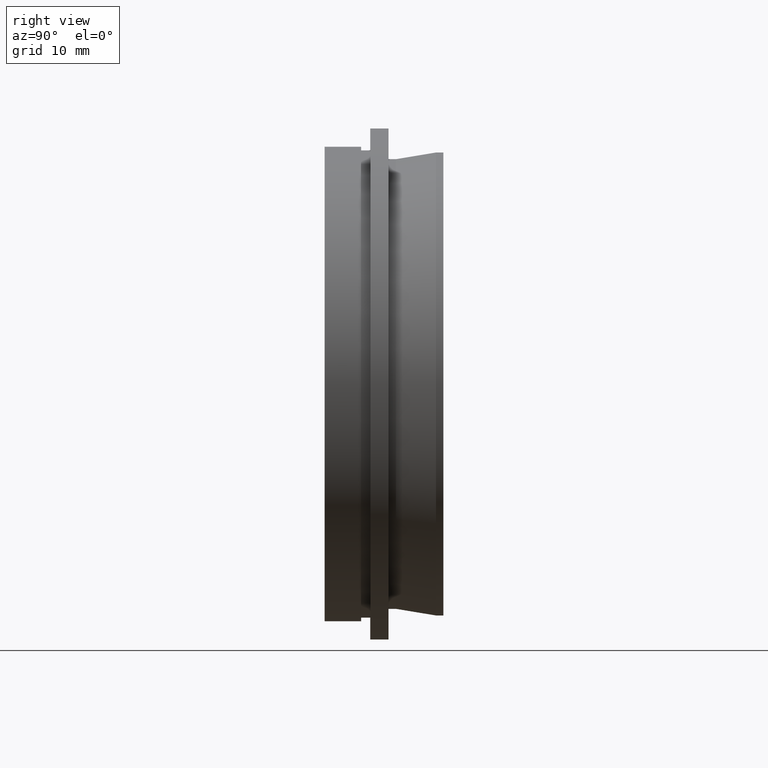
[diagram: clean part render]
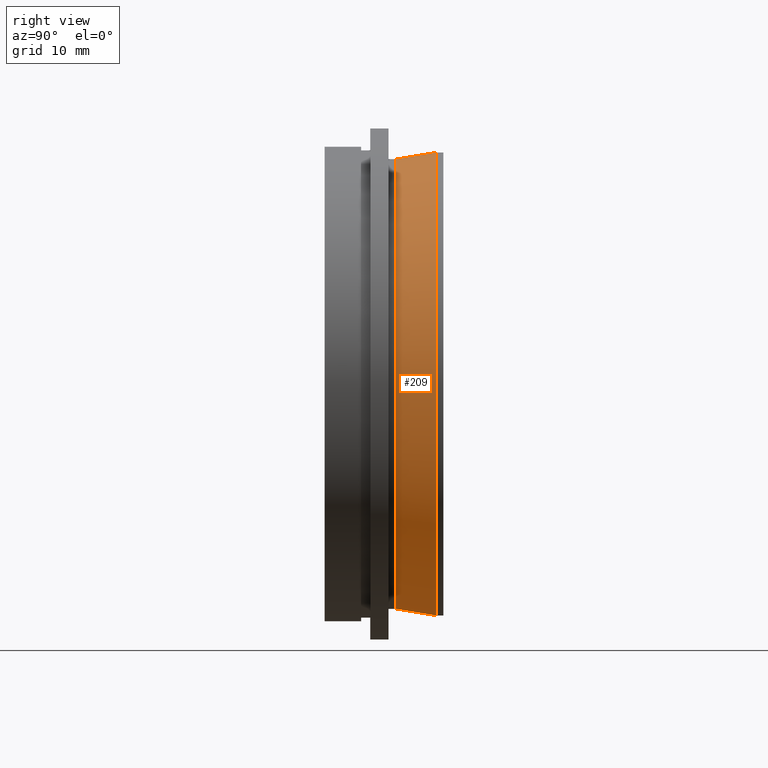
[diagram: same view with one face highlighted and labeled with its STEP entity id]
A machine part, right view. The second image highlights one B-rep face of the part: STEP entity #209.
In plain terms, the highlighted conical surface has half-angle 9.42 deg.
Its self-contained STEP definition (entity closure, byte-faithful):
#3 = EDGE_CURVE ( 'NONE', #626, #334, #116, .T. ) ;
#12 = EDGE_CURVE ( 'NONE', #626, #457, #235, .T. ) ;
#32 = CARTESIAN_POINT ( 'NONE',  ( 0.0000000000000000000, 12.20000000000000100, 0.0000000000000000000 ) ) ;
#59 = DIRECTION ( 'NONE',  ( -0.0000000000000000000, -1.000000000000000000, -0.0000000000000000000 ) ) ;
#66 = LINE ( 'NONE', #508, #198 ) ;
#78 = VECTOR ( 'NONE', #401, 1000.000000000000000 ) ;
#83 = AXIS2_PLACEMENT_3D ( 'NONE', #428, #59, #426 ) ;
#116 = LINE ( 'NONE', #155, #78 ) ;
#120 = CARTESIAN_POINT ( 'NONE',  ( 0.0000000000000000000, 7.800000000000005200, 24.63500000000000200 ) ) ;
#123 = ORIENTED_EDGE ( 'NONE', *, *, #369, .T. ) ;
#146 = AXIS2_PLACEMENT_3D ( 'NONE', #32, #245, #606 ) ;
#155 = CARTESIAN_POINT ( 'NONE',  ( 3.106316606037261500E-015, 12.20000000000000100, -25.36499999999999800 ) ) ;
#177 = VERTEX_POINT ( 'NONE', #504 ) ;
#198 = VECTOR ( 'NONE', #399, 1000.000000000000000 ) ;
#203 = EDGE_LOOP ( 'NONE', ( #228, #326, #123, #645 ) ) ;
#209 = ADVANCED_FACE ( 'NONE', ( #407 ), #612, .T. ) ;
#222 = CARTESIAN_POINT ( 'NONE',  ( 0.0000000000000000000, 12.20000000000000100, -25.36499999999999800 ) ) ;
#228 = ORIENTED_EDGE ( 'NONE', *, *, #12, .F. ) ;
#235 = CIRCLE ( 'NONE', #264, 24.63500000000000200 ) ;
#245 = DIRECTION ( 'NONE',  ( 0.0000000000000000000, 1.000000000000000000, 0.0000000000000000000 ) ) ;
#251 = DIRECTION ( 'NONE',  ( -0.0000000000000000000, -1.000000000000000000, -0.0000000000000000000 ) ) ;
#264 = AXIS2_PLACEMENT_3D ( 'NONE', #563, #251, #656 ) ;
#326 = ORIENTED_EDGE ( 'NONE', *, *, #3, .T. ) ;
#334 = VERTEX_POINT ( 'NONE', #222 ) ;
#369 = EDGE_CURVE ( 'NONE', #334, #177, #440, .T. ) ;
#399 = DIRECTION ( 'NONE',  ( 0.0000000000000000000, 0.9865148492742905600, 0.1636717818114160900 ) ) ;
#401 = DIRECTION ( 'NONE',  ( 2.004401237060946900E-017, 0.9865148492742905600, -0.1636717818114160900 ) ) ;
#407 = FACE_OUTER_BOUND ( 'NONE', #203, .T. ) ;
#426 = DIRECTION ( 'NONE',  ( 0.0000000000000000000, 0.0000000000000000000, -1.000000000000000000 ) ) ;
#428 = CARTESIAN_POINT ( 'NONE',  ( 0.0000000000000000000, 12.20000000000000100, 0.0000000000000000000 ) ) ;
#440 = CIRCLE ( 'NONE', #83, 25.36499999999999800 ) ;
#457 = VERTEX_POINT ( 'NONE', #120 ) ;
#504 = CARTESIAN_POINT ( 'NONE',  ( 3.106316606037261500E-015, 12.20000000000000100, 25.36499999999999800 ) ) ;
#508 = CARTESIAN_POINT ( 'NONE',  ( 0.0000000000000000000, 12.20000000000000100, 25.36499999999999800 ) ) ;
#563 = CARTESIAN_POINT ( 'NONE',  ( 0.0000000000000000000, 7.800000000000005200, 0.0000000000000000000 ) ) ;
#606 = DIRECTION ( 'NONE',  ( 0.0000000000000000000, 0.0000000000000000000, 1.000000000000000000 ) ) ;
#612 = CONICAL_SURFACE ( 'NONE', #146, 25.36499999999999800, 0.1644114862470263100 ) ;
#626 = VERTEX_POINT ( 'NONE', #647 ) ;
#631 = EDGE_CURVE ( 'NONE', #457, #177, #66, .T. ) ;
#645 = ORIENTED_EDGE ( 'NONE', *, *, #631, .F. ) ;
#647 = CARTESIAN_POINT ( 'NONE',  ( 3.061616997868383000E-015, 7.800000000000005200, -24.63500000000000200 ) ) ;
#656 = DIRECTION ( 'NONE',  ( 0.0000000000000000000, 0.0000000000000000000, -1.000000000000000000 ) ) ;